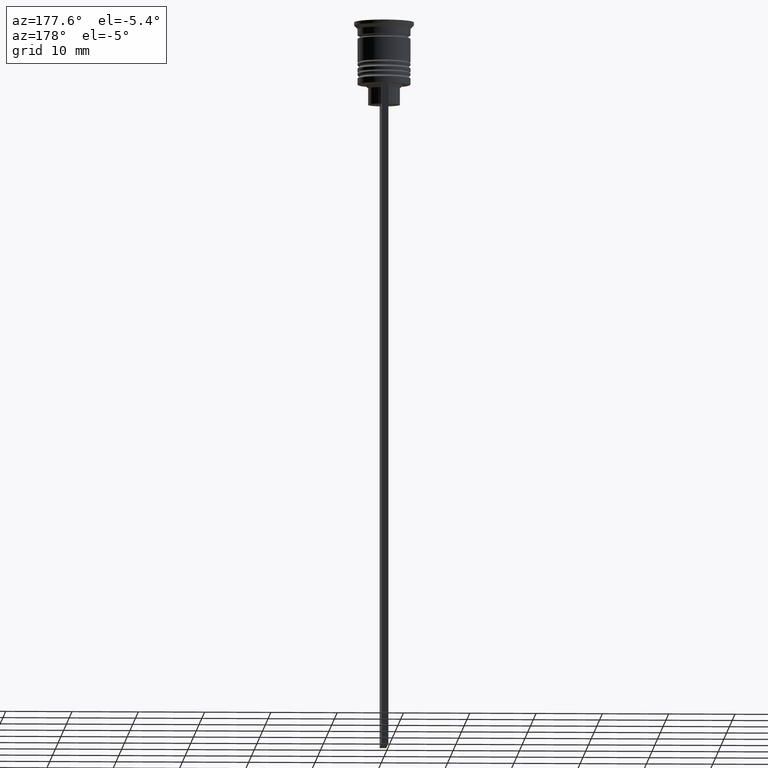
[diagram: clean part render]
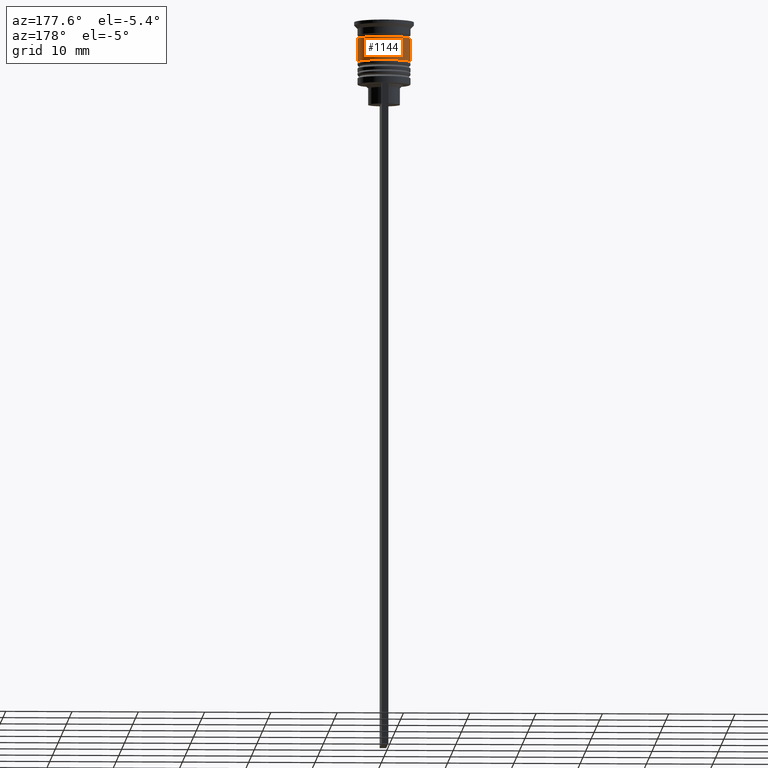
[diagram: same view with one face highlighted and labeled with its STEP entity id]
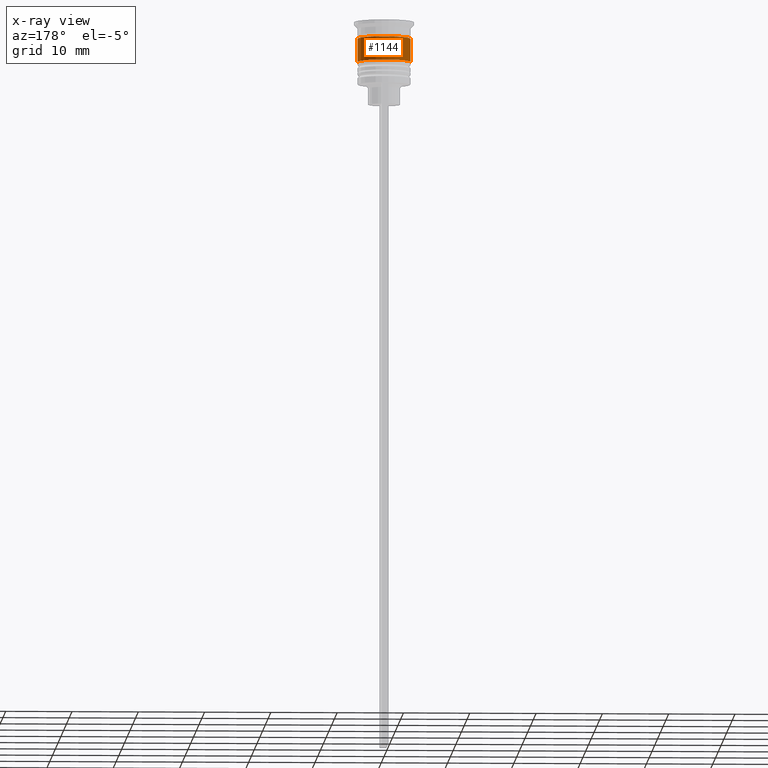
[diagram: x-ray of the same camera — body ghosted, the highlighted face saturated]
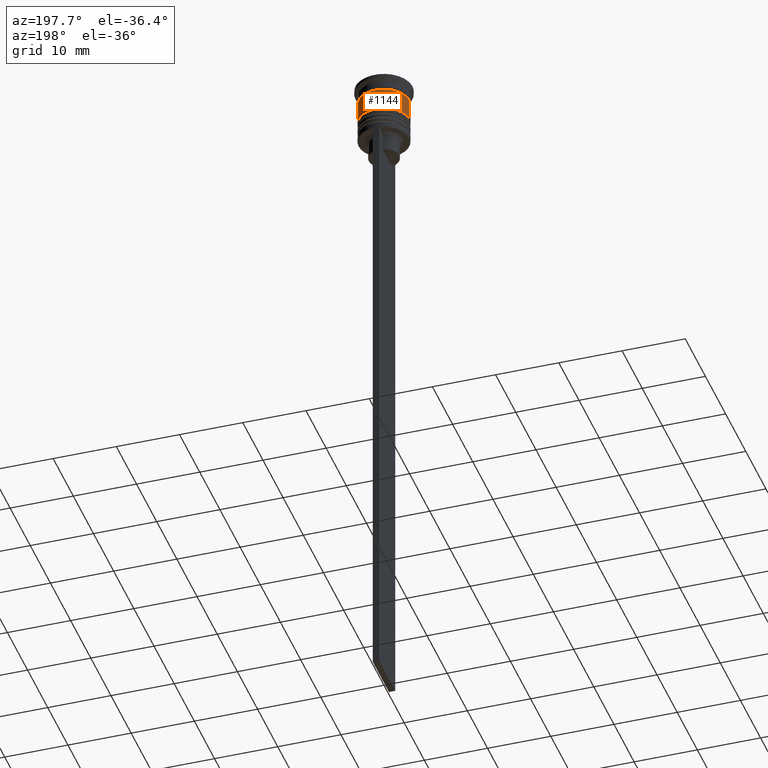
[diagram: same view with one face highlighted and labeled with its STEP entity id]
A machine part, auxiliary view. The second image highlights one B-rep face of the part: STEP entity #1144.
The next image is the same camera in x-ray: the body ghosted, the highlighted face saturated — about 0% of this face is hidden behind the body in this view.
A second angle (auxiliary view) of the same face is appended — the face is thin or edge-on in the first view.
In plain terms, the highlighted cylindrical surface (edge-blend (fillet) strip) has radius 4 mm, axis along (-0, -0, 1).
Its self-contained STEP definition (entity closure, byte-faithful):
#51 = CARTESIAN_POINT ( 'NONE',  ( 0.000000000000000000, 0.000000000000000000, 0.000000000000000000 ) ) ;
#114 = CARTESIAN_POINT ( 'NONE',  ( 0.000000000000000000, 0.000000000000000000, -6.000000000000000000 ) ) ;
#116 = LINE ( 'NONE', #680, #477 ) ;
#243 = DIRECTION ( 'NONE',  ( -0.000000000000000000, -0.000000000000000000, 1.000000000000000000 ) ) ;
#263 = DIRECTION ( 'NONE',  ( -0.000000000000000000, -0.000000000000000000, 1.000000000000000000 ) ) ;
#327 = CARTESIAN_POINT ( 'NONE',  ( 4.000000000000000888, 0.000000000000000000, -6.000000000000000000 ) ) ;
#455 = EDGE_CURVE ( 'NONE', #1702, #1451, #1871, .T. ) ;
#477 = VECTOR ( 'NONE', #2292, 1000.000000000000000 ) ;
#496 = DIRECTION ( 'NONE',  ( -0.000000000000000000, -0.000000000000000000, 1.000000000000000000 ) ) ;
#510 = DIRECTION ( 'NONE',  ( 1.000000000000000000, 0.000000000000000000, 0.000000000000000000 ) ) ;
#577 = VERTEX_POINT ( 'NONE', #327 ) ;
#629 = AXIS2_PLACEMENT_3D ( 'NONE', #51, #2384, #633 ) ;
#633 = DIRECTION ( 'NONE',  ( 1.000000000000000000, 0.000000000000000000, 0.000000000000000000 ) ) ;
#655 = FACE_OUTER_BOUND ( 'NONE', #794, .T. ) ;
#680 = CARTESIAN_POINT ( 'NONE',  ( -4.000000000000000000, 4.898587196589412829E-16, 0.000000000000000000 ) ) ;
#794 = EDGE_LOOP ( 'NONE', ( #966, #1302, #851, #945 ) ) ;
#851 = ORIENTED_EDGE ( 'NONE', *, *, #455, .F. ) ;
#945 = ORIENTED_EDGE ( 'NONE', *, *, #1884, .F. ) ;
#966 = ORIENTED_EDGE ( 'NONE', *, *, #1239, .T. ) ;
#1004 = CARTESIAN_POINT ( 'NONE',  ( -4.000000000000000888, 4.898587196589413815E-16, -6.000000000000000000 ) ) ;
#1100 = CARTESIAN_POINT ( 'NONE',  ( 4.000000000000000000, 0.000000000000000000, -2.500000000000000000 ) ) ;
#1144 = ADVANCED_FACE ( 'NONE', ( #655 ), #1594, .T. ) ;
#1239 = EDGE_CURVE ( 'NONE', #577, #1574, #2316, .T. ) ;
#1284 = VECTOR ( 'NONE', #263, 1000.000000000000000 ) ;
#1302 = ORIENTED_EDGE ( 'NONE', *, *, #1825, .T. ) ;
#1429 = CARTESIAN_POINT ( 'NONE',  ( 0.000000000000000000, 0.000000000000000000, -2.500000000000000000 ) ) ;
#1451 = VERTEX_POINT ( 'NONE', #1540 ) ;
#1475 = LINE ( 'NONE', #2004, #1284 ) ;
#1540 = CARTESIAN_POINT ( 'NONE',  ( -4.000000000000000000, 4.898587196589412829E-16, -2.500000000000000000 ) ) ;
#1574 = VERTEX_POINT ( 'NONE', #1004 ) ;
#1594 = CYLINDRICAL_SURFACE ( 'NONE', #629, 4.000000000000000000 ) ;
#1702 = VERTEX_POINT ( 'NONE', #1100 ) ;
#1825 = EDGE_CURVE ( 'NONE', #1574, #1451, #116, .T. ) ;
#1871 = CIRCLE ( 'NONE', #1909, 4.000000000000000000 ) ;
#1884 = EDGE_CURVE ( 'NONE', #577, #1702, #1475, .T. ) ;
#1909 = AXIS2_PLACEMENT_3D ( 'NONE', #1429, #243, #2395 ) ;
#2004 = CARTESIAN_POINT ( 'NONE',  ( 4.000000000000000000, 0.000000000000000000, 0.000000000000000000 ) ) ;
#2025 = AXIS2_PLACEMENT_3D ( 'NONE', #114, #496, #510 ) ;
#2292 = DIRECTION ( 'NONE',  ( -0.000000000000000000, -0.000000000000000000, 1.000000000000000000 ) ) ;
#2316 = CIRCLE ( 'NONE', #2025, 4.000000000000000888 ) ;
#2384 = DIRECTION ( 'NONE',  ( -0.000000000000000000, -0.000000000000000000, 1.000000000000000000 ) ) ;
#2395 = DIRECTION ( 'NONE',  ( 1.000000000000000000, 0.000000000000000000, 0.000000000000000000 ) ) ;